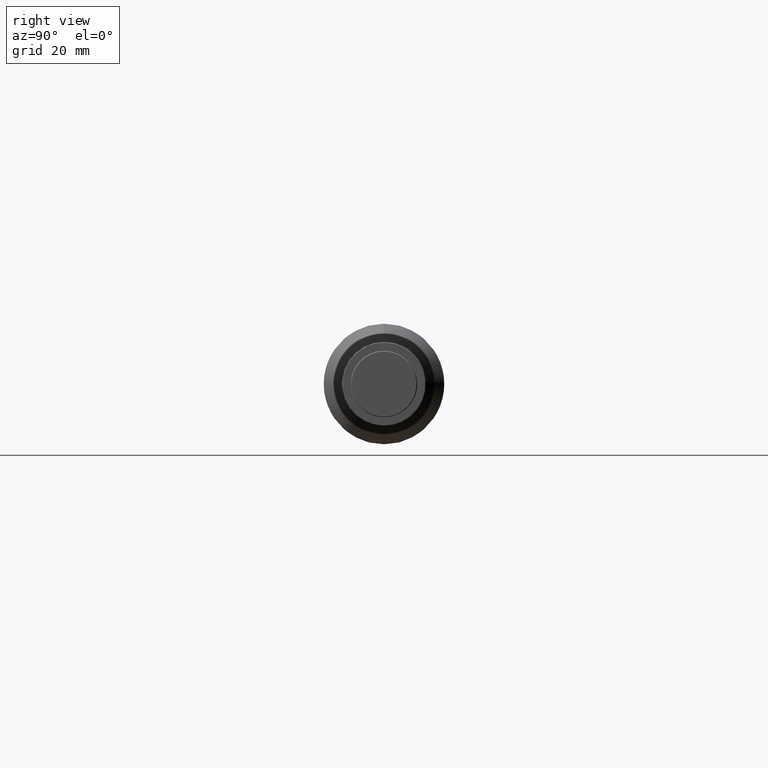
[diagram: clean part render]
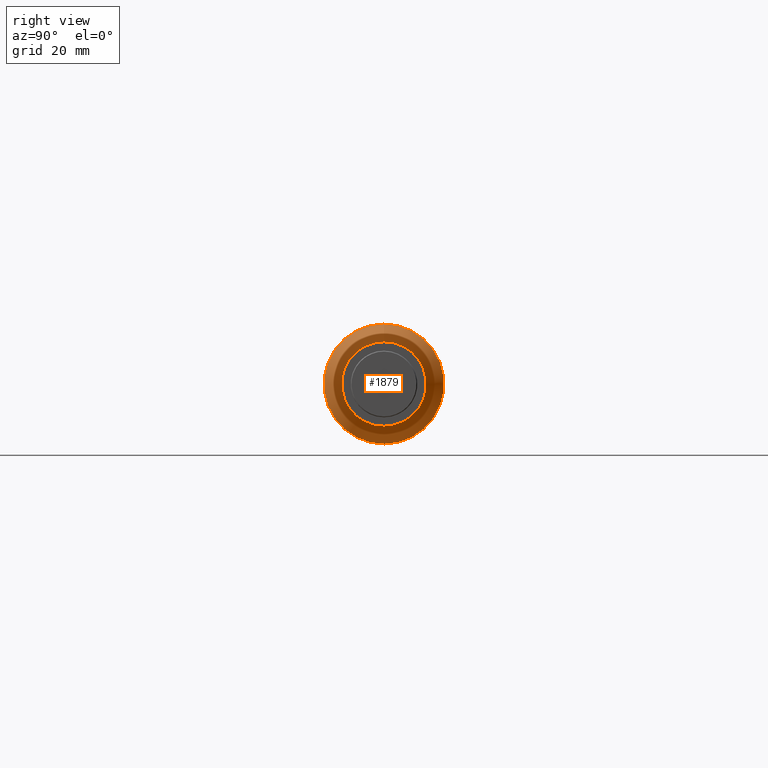
[diagram: same view with one face highlighted and labeled with its STEP entity id]
A machine part, right view. The second image highlights one B-rep face of the part: STEP entity #1879.
In plain terms, the highlighted conical surface has half-angle 30 deg.
Its self-contained STEP definition (entity closure, byte-faithful):
#11 = EDGE_CURVE ( 'NONE', #1090, #1090, #60, .T. ) ;
#60 = CIRCLE ( 'NONE', #720, 16.13397459621556607 ) ;
#225 = CARTESIAN_POINT ( 'NONE',  ( 139.8073368454131469, 1.717760224860531704E-06, 0.000000000000000000 ) ) ;
#247 = DIRECTION ( 'NONE',  ( -1.000000000000000000, -0.000000000000000000, -0.000000000000000000 ) ) ;
#271 = CARTESIAN_POINT ( 'NONE',  ( 139.8073368454131469, 1.717760224860531704E-06, 16.13397459621556607 ) ) ;
#355 = AXIS2_PLACEMENT_3D ( 'NONE', #1672, #1811, #1001 ) ;
#435 = ORIENTED_EDGE ( 'NONE', *, *, #1262, .F. ) ;
#569 = FACE_BOUND ( 'NONE', #873, .T. ) ;
#720 = AXIS2_PLACEMENT_3D ( 'NONE', #225, #247, #877 ) ;
#873 = EDGE_LOOP ( 'NONE', ( #1060 ) ) ;
#877 = DIRECTION ( 'NONE',  ( 0.000000000000000000, 0.000000000000000000, 1.000000000000000000 ) ) ;
#934 = DIRECTION ( 'NONE',  ( 0.000000000000000000, 0.000000000000000000, -1.000000000000000000 ) ) ;
#967 = EDGE_LOOP ( 'NONE', ( #435 ) ) ;
#996 = AXIS2_PLACEMENT_3D ( 'NONE', #1103, #1292, #934 ) ;
#1001 = DIRECTION ( 'NONE',  ( 0.000000000000000000, 0.000000000000000000, 1.000000000000000000 ) ) ;
#1060 = ORIENTED_EDGE ( 'NONE', *, *, #11, .T. ) ;
#1090 = VERTEX_POINT ( 'NONE', #271 ) ;
#1103 = CARTESIAN_POINT ( 'NONE',  ( 128.1470828075688075, 1.717760224860531704E-06, 0.000000000000000000 ) ) ;
#1184 = FACE_OUTER_BOUND ( 'NONE', #967, .T. ) ;
#1262 = EDGE_CURVE ( 'NONE', #1478, #1478, #1629, .T. ) ;
#1292 = DIRECTION ( 'NONE',  ( -1.000000000000000000, -0.000000000000000000, -0.000000000000000000 ) ) ;
#1478 = VERTEX_POINT ( 'NONE', #1627 ) ;
#1511 = CONICAL_SURFACE ( 'NONE', #355, 22.86602540378444459, 0.5235987755983007030 ) ;
#1627 = CARTESIAN_POINT ( 'NONE',  ( 128.1470828075688075, 1.717760224860531704E-06, -22.86602540378443749 ) ) ;
#1629 = CIRCLE ( 'NONE', #996, 22.86602540378443749 ) ;
#1672 = CARTESIAN_POINT ( 'NONE',  ( 128.1470828075688075, 1.717760224860531704E-06, 0.000000000000000000 ) ) ;
#1811 = DIRECTION ( 'NONE',  ( -1.000000000000000000, 0.000000000000000000, 0.000000000000000000 ) ) ;
#1879 = ADVANCED_FACE ( 'NONE', ( #1184, #569 ), #1511, .T. ) ;